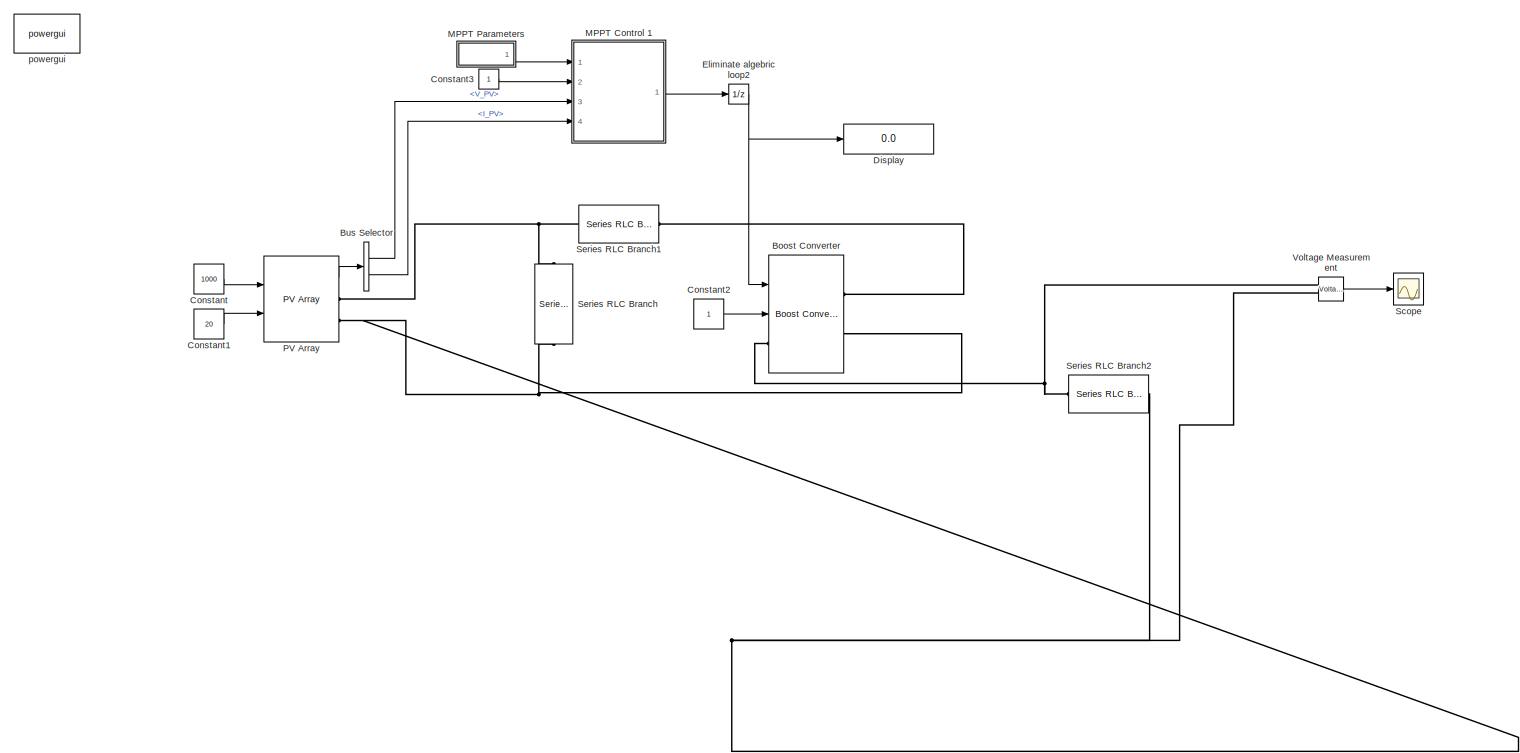
[diagram: root canvas - part 1/1, most of the canvas]
MODEL slx_98d671443189
KIND model
CONFIG AbsTol = auto
CONFIG EnableMultiTasking = on
CONFIG FixedStep = auto
CONFIG MaxStep = auto
CONFIG MinStep = auto
CONFIG RelTol = 1e-3
CONFIG SampleTimeConstraint = Unconstrained
CONFIG Solver = ode23tb
CONFIG SolverName = ode23tb
CONFIG StartTime = 0.0
CONFIG StopTime = 12
BLOCK [Reference] Boost Converter  REF=powerlib/Power
Electronics/Boost Converter
  Ports = [2, 0, 0, 0, 0, 1, 2]
  SourceBlock = powerlib/Power\nElectronics/Boost Converter
  SourceProductBaseCode = PS
  SourceProductName = Simscape Electrical
  SourceType = Boost Converter
BLOCK [BusSelector] Bus Selector
  OutputAsBus = off
  OutputSignals = V_PV,I_PV
  Ports = [1, 2]
BLOCK [Constant] Constant
  Value = 1000
BLOCK [Constant] Constant1
  Value = 20
BLOCK [Constant] Constant2
BLOCK [Constant] Constant3
BLOCK [Display] Display
  Decimation = 1
  Ports = [1]
BLOCK [UnitDelay] Eliminate algebric loop2
  HasFrameUpgradeWarning = on
  InitialCondition = 0.475
  SampleTime = Ts_Control
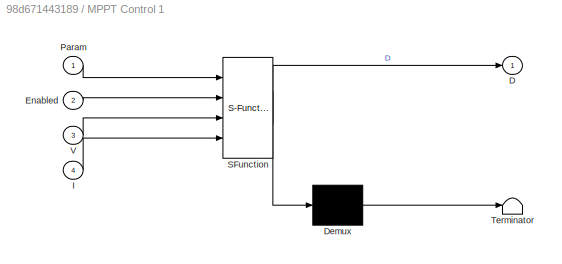
BLOCK [SubSystem] MPPT Control  1
  ErrorFcn = Stateflow.Translate.translate
  PermitHierarchicalResolution = ExplicitOnly
  Ports = [4, 1]
  RequestExecContextInheritance = off
  SFBlockType = MATLAB Function
  TreatAsAtomicUnit = on
BLOCK [Demux] MPPT Control  1/ Demux 
  Outputs = 1
  Ports = [1, 1]
BLOCK [S-Function] MPPT Control  1/ SFunction 
  EnableBusSupport = off
  FunctionName = sf_sfun
  PortCounts = [4 2]
  Ports = [4, 2]
  SFcnIsStateOwnerBlock = off
  SFunctionDeploymentMode = off
  Tag = Stateflow S-Function 1
BLOCK [Terminator] MPPT Control  1/ Terminator 
BLOCK [Outport] MPPT Control  1/D
  IconDisplay = Port number
BLOCK [Inport] MPPT Control  1/Enabled
  IconDisplay = Port number
  Port = 2
BLOCK [Inport] MPPT Control  1/I
  IconDisplay = Port number
  Port = 4
BLOCK [Inport] MPPT Control  1/Param
  IconDisplay = Port number
BLOCK [Inport] MPPT Control  1/V
  IconDisplay = Port number
  Port = 3
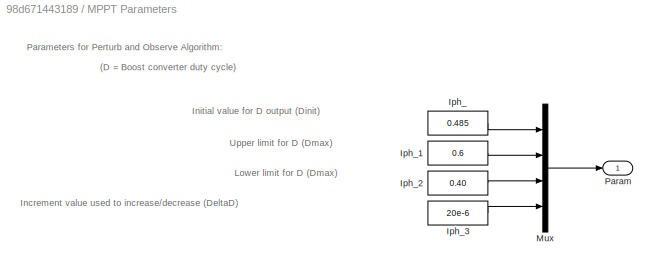
BLOCK [SubSystem] MPPT Parameters
  Ports = [0, 1]
  RequestExecContextInheritance = off
BLOCK [Constant] MPPT Parameters/Iph_
  Value = 0.485
BLOCK [Constant] MPPT Parameters/Iph_1
  Value = 0.6
BLOCK [Constant] MPPT Parameters/Iph_2
  Value = 0.40
BLOCK [Constant] MPPT Parameters/Iph_3
  Value = 20e-6
BLOCK [Mux] MPPT Parameters/Mux
  DisplayOption = bar
  Ports = [4, 1]
BLOCK [Outport] MPPT Parameters/Param
  IconDisplay = Port number
BLOCK [Reference] PV Array  REF=re_lib/Solar/PV Array
  Ports = [2, 1, 0, 0, 0, 0, 2]
  SourceBlock = re_lib/Solar/PV Array
  SourceProductBaseCode = PS
  SourceProductName = Simscape Electrical
  SourceType = PV array
BLOCK [Scope] Scope
  Floating = off
  NumInputPorts = 1
  Ports = [1]
  ScopeSpecificationString = Simulink.scopes.TimeScopeBlockCfg('CurrentConfiguration', extmgr.ConfigurationSet(extmgr.Configuration('Core','General UI',true),extmgr.Configuration('Core','Source UI',true),extmgr.Configuration('Sources','WiredSimulink',true),extmgr.Configuration('Visuals','Time Domain',true,'SerializedDisplays',{struct('MinYLimReal','-0.00094','MaxYLimReal','0.00846','YLabelReal','','MinYLimMag','0.00000','MaxY...<+1414ch>
BLOCK [Reference] Series RLC Branch  REF=powerlib/Elements/Series RLC Branch
  Ports = [0, 0, 0, 0, 0, 1, 1]
  SourceBlock = powerlib/Elements/Series RLC Branch
  SourceProductBaseCode = PS
  SourceProductName = Simscape Electrical
  SourceType = Series RLC Branch
BLOCK [Reference] Series RLC Branch1  REF=powerlib/Elements/Series RLC Branch
  Ports = [0, 0, 0, 0, 0, 1, 1]
  SourceBlock = powerlib/Elements/Series RLC Branch
  SourceProductBaseCode = PS
  SourceProductName = Simscape Electrical
  SourceType = Series RLC Branch
BLOCK [Reference] Series RLC Branch2  REF=powerlib/Elements/Series RLC Branch
  Ports = [0, 0, 0, 0, 0, 1, 1]
  SourceBlock = powerlib/Elements/Series RLC Branch
  SourceProductBaseCode = PS
  SourceProductName = Simscape Electrical
  SourceType = Series RLC Branch
BLOCK [Reference] Voltage Measurement  REF=powerlib/Measurements/Voltage Measurement
  Ports = [0, 1, 0, 0, 0, 2]
  SourceBlock = powerlib/Measurements/Voltage Measurement
  SourceProductBaseCode = PS
  SourceProductName = Simscape Electrical
  SourceType = Voltage Measurement
  UserDataPersistent = on
BLOCK [Reference] powergui  REF=powerlib/powergui
  Ports = []
  Priority = 1
  SourceBlock = powerlib/powergui
  SourceProductBaseCode = PS
  SourceProductName = Simscape Electrical
  SourceType = PSB option menu block
ANNOTATION MPPT Parameters: (D = Boost converter duty cycle)
ANNOTATION MPPT Parameters: Increment value used to increase/decrease (DeltaD)
ANNOTATION MPPT Parameters: Initial value for D output (Dinit)
ANNOTATION MPPT Parameters: Lower limit for D (Dmax)
ANNOTATION MPPT Parameters: Parameters for Perturb and Observe Algorithm:
ANNOTATION MPPT Parameters: Upper limit for D (Dmax)
LINE Bus Selector:1 -> MPPT Control  1:3
LINE Bus Selector:2 -> MPPT Control  1:4
LINE Constant1:1 -> PV Array:2
LINE Constant2:1 -> Boost Converter:2
LINE Constant3:1 -> MPPT Control  1:2
LINE Constant:1 -> PV Array:1
NET Eliminate algebric loop2:1 -> Boost Converter:1, Display:1
LINE MPPT Control  1:1 -> Eliminate algebric loop2:1
LINE MPPT Parameters/Iph_1:1 -> MPPT Parameters/Mux:2
LINE MPPT Parameters/Iph_2:1 -> MPPT Parameters/Mux:3
LINE MPPT Parameters/Iph_3:1 -> MPPT Parameters/Mux:4
LINE MPPT Parameters/Iph_:1 -> MPPT Parameters/Mux:1
LINE MPPT Parameters/Mux:1 -> MPPT Parameters/Param:1
LINE MPPT Parameters:1 -> MPPT Control  1:1
LINE PV Array:1 -> Bus Selector:1
LINE Voltage Measurement:1 -> Scope:1
PNET net1: Boost Converter:LConn1 -- Series RLC Branch2:LConn1 -- Voltage Measurement:LConn1
PLINE Boost Converter:RConn1 -- Series RLC Branch1:RConn1
PNET net2: Boost Converter:RConn2 -- PV Array:RConn2 -- Series RLC Branch2:RConn1 -- Series RLC Branch:RConn1 -- Voltage Measurement:LConn2
PNET net3: PV Array:RConn1 -- Series RLC Branch1:LConn1 -- Series RLC Branch:LConn1
note: NET lines group one-source signal fan-out (src -> all destinations, sorted); 1:1 wires keep LINE; PNET lines group multi-terminal physical nets as a canonical sorted terminal list (undirected conserving connections); 2-terminal nets keep the pairwise PLINE form
CHART MPPT Control  1 states=1 transitions=1
  STATE_LABEL 'eML_blk_kernel()'
  STATE_LABEL "SCRIPT:\nfunction D  = PandO(Param, Enabled, V, I)\nDinit = Param(1);  \nDmax = Param(2);   \nDmin = Param(3);  \ndeltaD = Param(4); \npersistent Vold Pold Dold;\ndataType = 'double';\nif isempty(Vold)\n    Vold=0;\n    Pold=0;\n    Dold=Dinit;\nend\nP= V*I;\ndV= V - Vold;\ndP= P - Pold;\nif dP ~= 0 & Enabled ~=0\n    if dP < 0\n        if dV < 0\n            D = Dold - deltaD;\n        else\n            D = Dold + de...<+227ch>"
